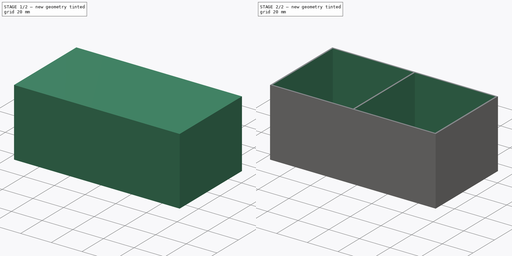
[diagram: build sequence overview — one tinted view per stage of 2, left to right]
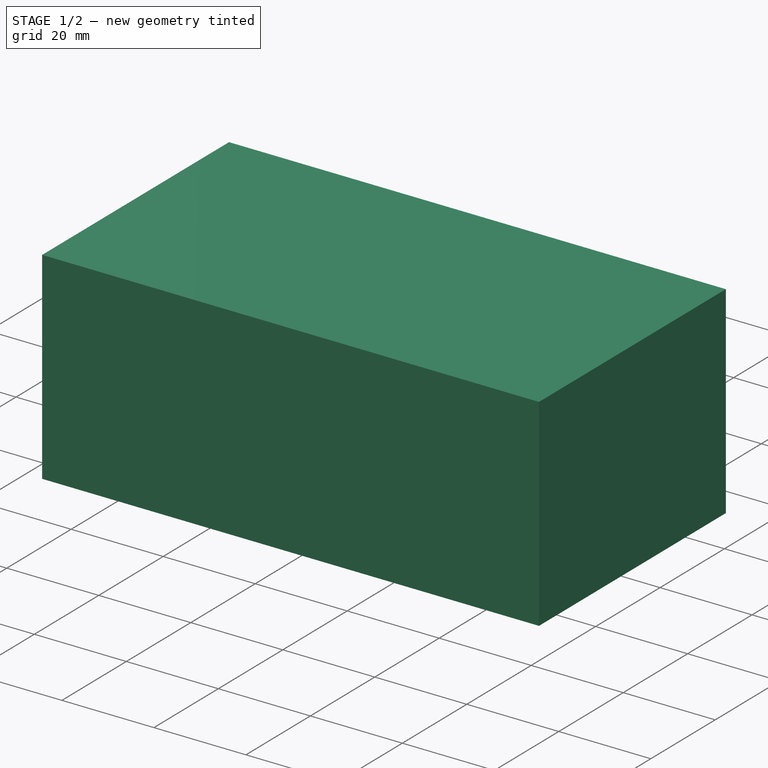
[diagram: stage 1 of 2 — iso view after this stage's code; geometry added in this stage tinted green]
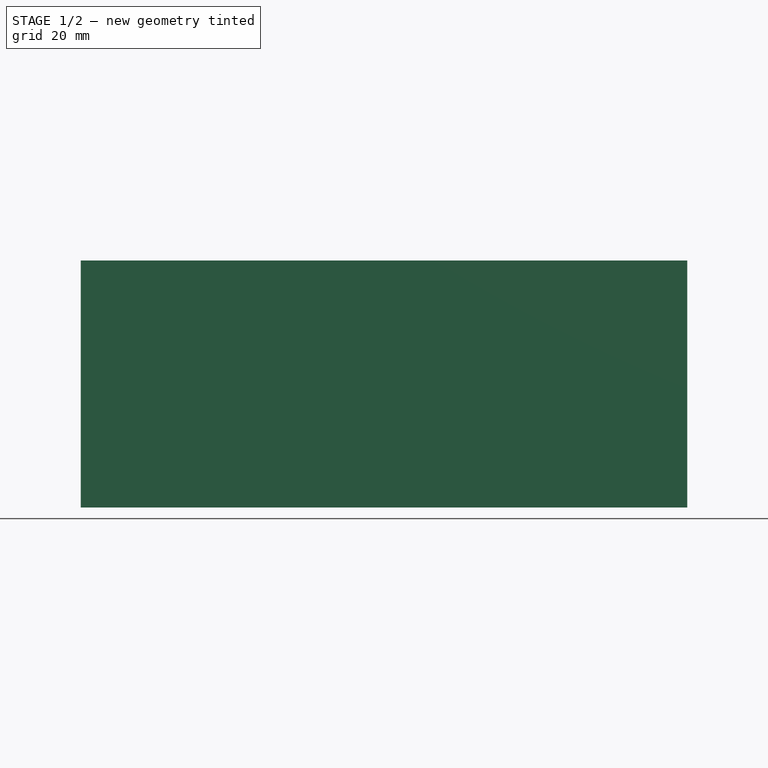
[diagram: stage 1 of 2 — front view after this stage's code; geometry added in this stage tinted green]
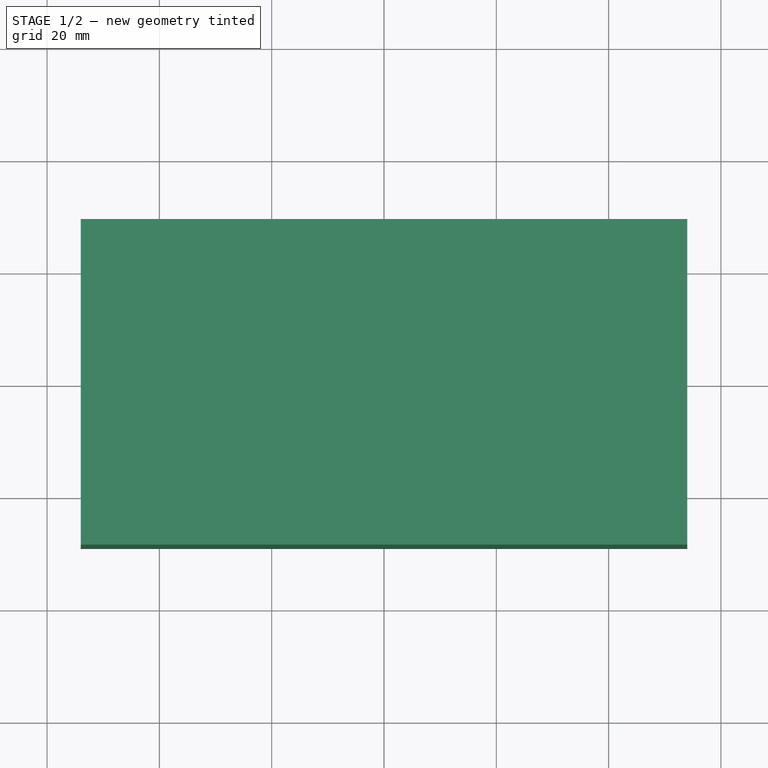
[diagram: stage 1 of 2 — top view after this stage's code; geometry added in this stage tinted green]
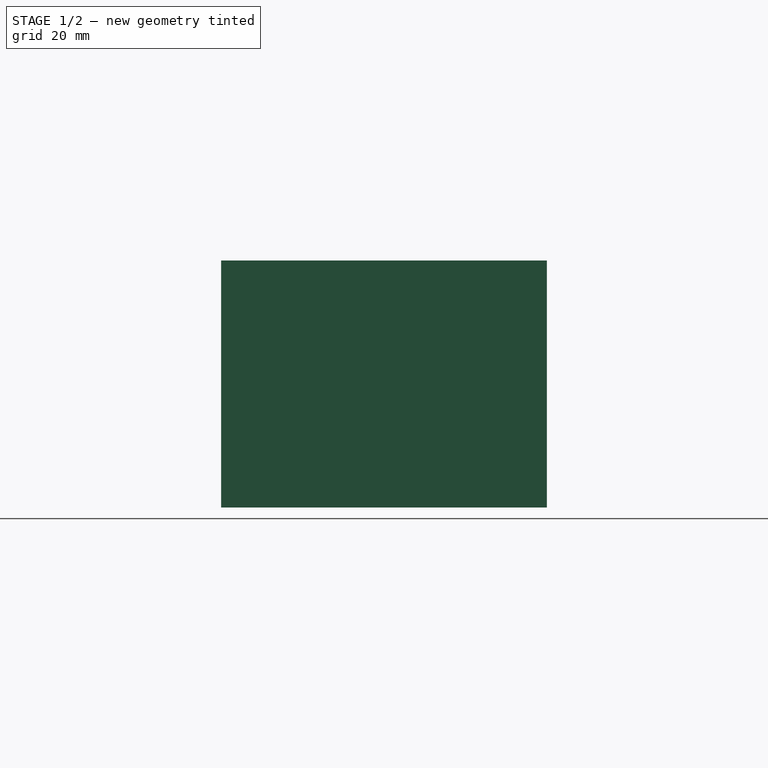
[diagram: stage 1 of 2 — right view after this stage's code; geometry added in this stage tinted green]
FCSTD DOCUMENT  (FreeCAD 1.0R39109 (Git))
Label: box
License: All rights reserved
LicenseURL: http://en.wikipedia.org/wiki/All_rights_reserved
objects: Sketcher::SketchObject×2, PartDesign::Pad×1, PartDesign::Pocket×1, PartDesign::Body×1
note: 11 computed .brp shape members not serialized (recipe doc carries the construction recipe); baked Part::Feature solids carry a one-line shape summary decoded from their .brp

FEATURE [Sketcher::SketchObject] Sketch
  ArcFitTolerance = 1e-06
  AttachmentSupport = -> [XY_Plane]
  FullyConstrained = true
  MakeInternals = false
  MapMode = 5
  sketch-geometry (4):
    g0: LineSegment StartX=-54 StartY=29 StartZ=0 EndX=-54 EndY=-29 EndZ=0
    g1: LineSegment StartX=-54 StartY=-29 StartZ=0 EndX=54 EndY=-29 EndZ=0
    g2: LineSegment StartX=54 StartY=-29 StartZ=0 EndX=54 EndY=29 EndZ=0
    g3: LineSegment StartX=54 StartY=29 StartZ=0 EndX=-54 EndY=29 EndZ=0
  constraints (11):
    c: Coincident(g0,g1)
    c: Coincident(g1,g2)
    c: Coincident(g2,g3)
    c: Coincident(g3,g0)
    c: Vertical(g0)
    c: Vertical(g2)
    c: Horizontal(g1)
    c: Horizontal(g3)
    c: Symmetric(g1,g0,g-1)
    c: DistanceY(g0,g0) = 58
    c: DistanceX(g3,g3) = 108
FEATURE [PartDesign::Pad] Pad
  Direction = (0,0,1)
  Length = 44
  Length2 = 10
  Profile = -> Sketch
  ReferenceAxis = -> Sketch [N_Axis]
  Suppressed = false
  Type = 0
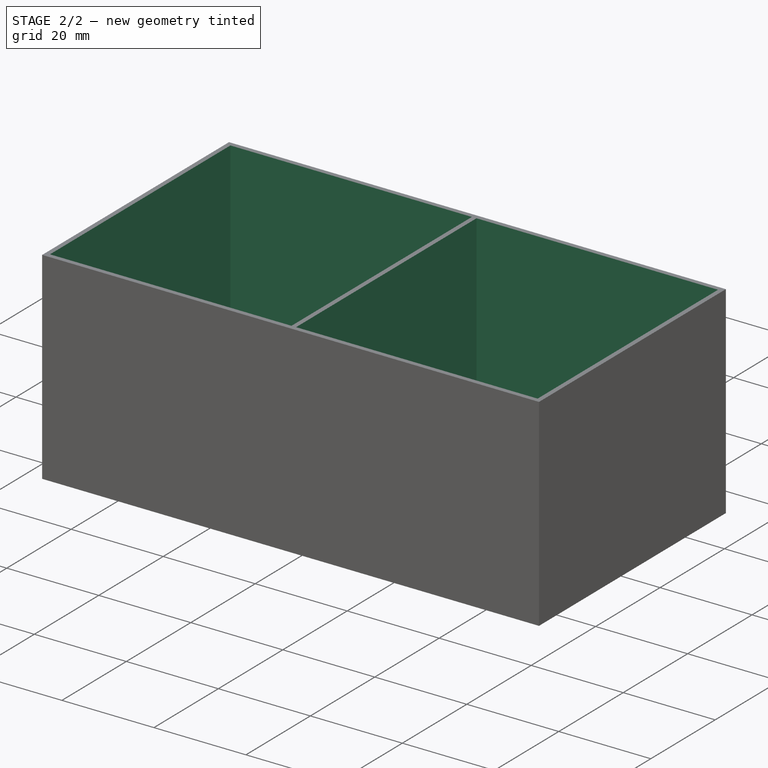
[diagram: stage 2 of 2 — iso view after this stage's code; geometry added in this stage tinted green]
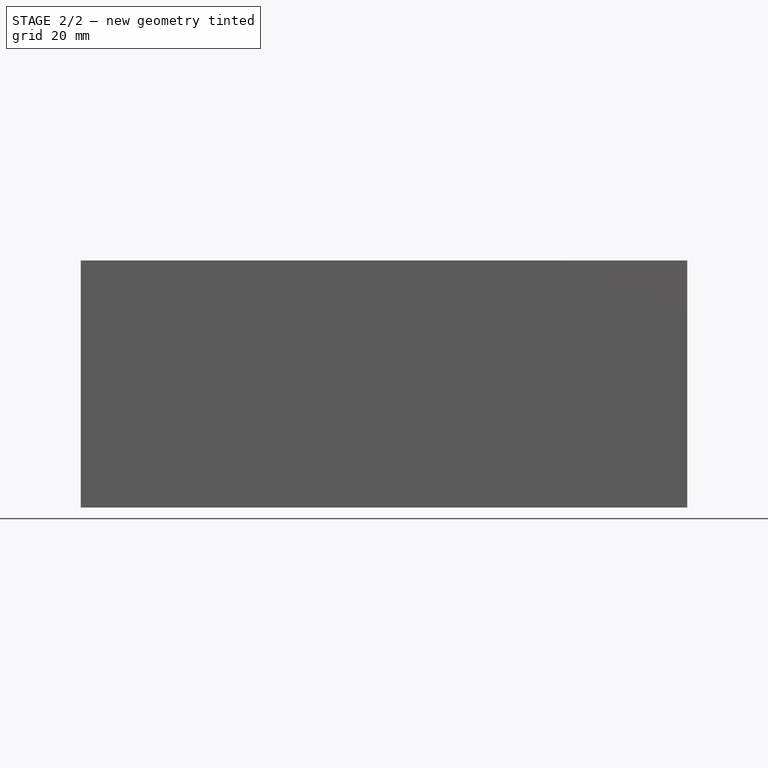
[diagram: stage 2 of 2 — front view after this stage's code; geometry added in this stage tinted green]
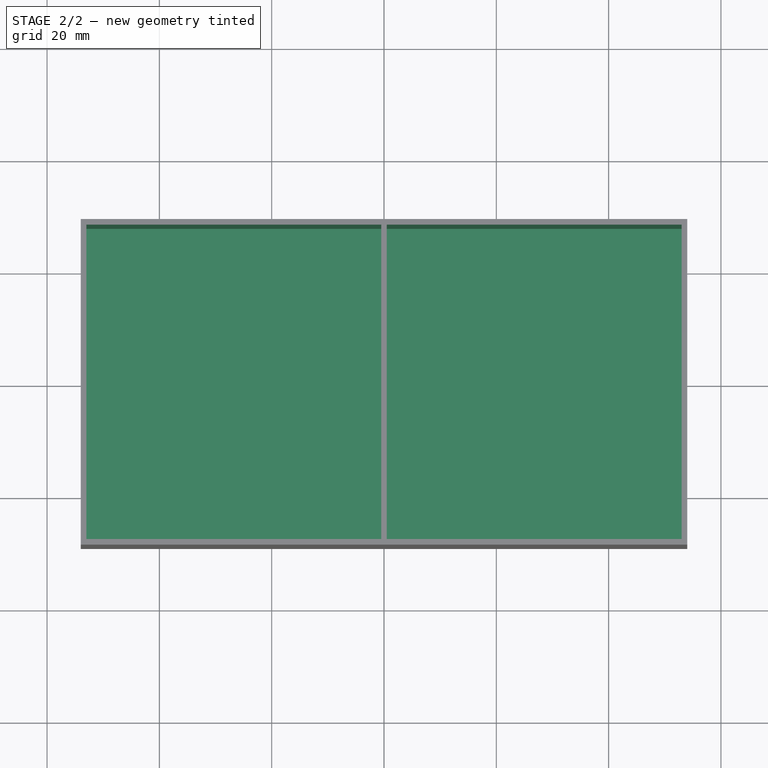
[diagram: stage 2 of 2 — top view after this stage's code; geometry added in this stage tinted green]
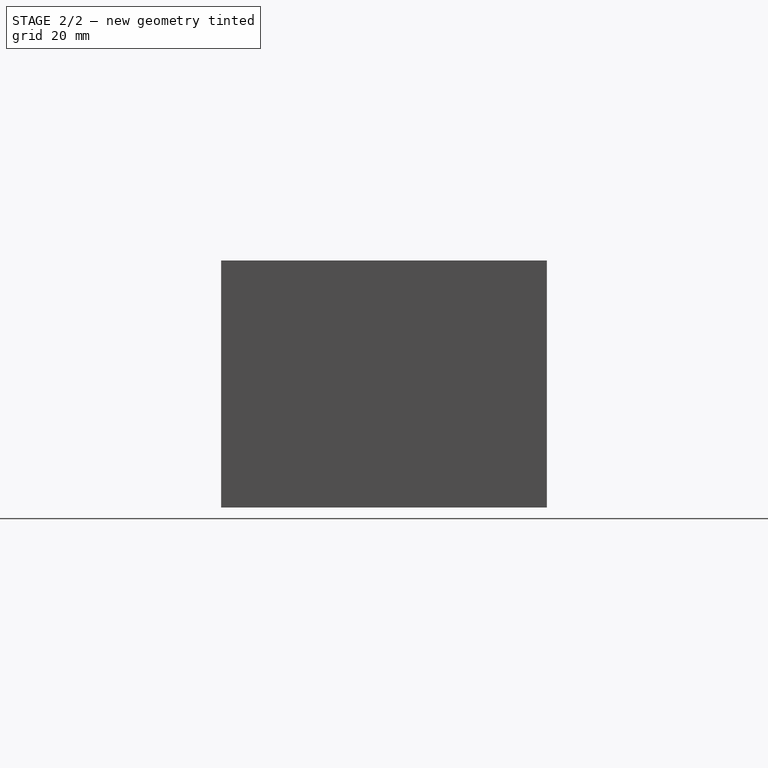
[diagram: stage 2 of 2 — right view after this stage's code; geometry added in this stage tinted green]
FEATURE [Sketcher::SketchObject] Sketch001
  ArcFitTolerance = 1e-06
  AttachmentSupport = -> [Pad]
  ExternalGeometry = -> [Pad]
  FullyConstrained = true
  MakeInternals = false
  MapMode = 5
  Placement = pos=(0,0,44) rot=(0,0,1;0rad)
  sketch-geometry (8):
    g0: LineSegment StartX=-53 StartY=28 StartZ=0 EndX=-53 EndY=-28 EndZ=0
    g1: LineSegment StartX=-53 StartY=-28 StartZ=0 EndX=-0.5 EndY=-28 EndZ=0
    g2: LineSegment StartX=-0.5 StartY=-28 StartZ=0 EndX=-0.5 EndY=28 EndZ=0
    g3: LineSegment StartX=-0.5 StartY=28 StartZ=0 EndX=-53 EndY=28 EndZ=0
    g4: LineSegment StartX=0.5 StartY=28 StartZ=0 EndX=0.5 EndY=-28 EndZ=0
    g5: LineSegment StartX=0.5 StartY=-28 StartZ=0 EndX=53 EndY=-28 EndZ=0
    g6: LineSegment StartX=53 StartY=-28 StartZ=0 EndX=53 EndY=28 EndZ=0
    g7: LineSegment StartX=53 StartY=28 StartZ=0 EndX=0.5 EndY=28 EndZ=0
  constraints (24):
    c: Coincident(g0,g1)
    c: Coincident(g1,g2)
    c: Coincident(g2,g3)
    c: Coincident(g3,g0)
    c: Vertical(g0)
    c: Vertical(g2)
    c: Horizontal(g1)
    c: Horizontal(g3)
    c: DistanceX(g3,g3) = 52.5
    c: DistanceY(g0,g0) = 56
    c: Coincident(g4,g5)
    c: Coincident(g5,g6)
    c: Coincident(g6,g7)
    c: Coincident(g7,g4)
    c: Vertical(g4)
    c: Vertical(g6)
    c: Horizontal(g5)
    c: Horizontal(g7)
    c: DistanceX(g-3,g0) = 1
    c: DistanceY(g0,g-3) = 1
    c: DistanceX(g6,g-6) = 1
    c: DistanceY(g6,g-6) = 1
    c: DistanceY(g6,g6) = 56
    c: DistanceX(g7,g7) = 52.5
FEATURE [PartDesign::Pocket] Pocket
  BaseFeature = -> Pad
  Direction = (0,0,-1)
  Length = 43
  Length2 = 5
  Profile = -> Sketch001
  ReferenceAxis = -> Sketch001 [N_Axis]
  Suppressed = false
  Type = 0
FEATURE [PartDesign::Body] Body
  AllowCompound = false
  Group = -> [Sketch,Pad,Sketch001,Pocket]
  Origin = -> Origin
  Tip = -> Pocket
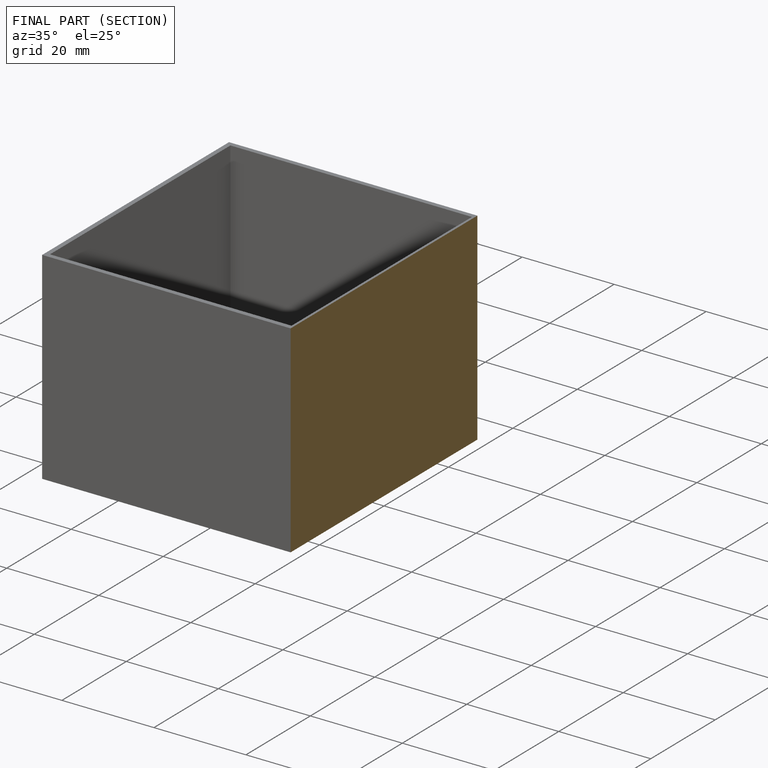
[diagram: finished part — half-section view (interior)]
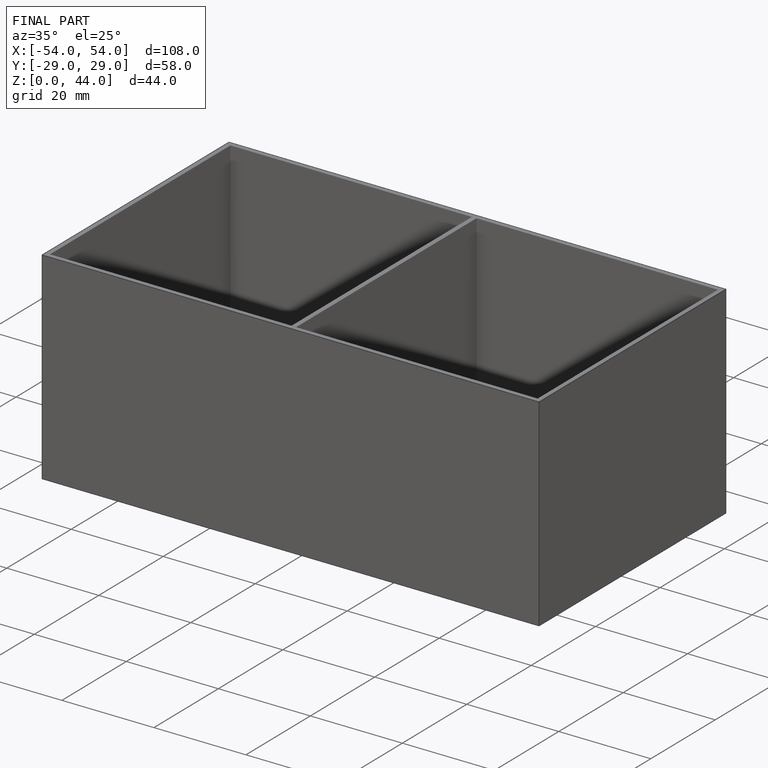
[diagram: finished part — iso view with bounding-box wireframe]
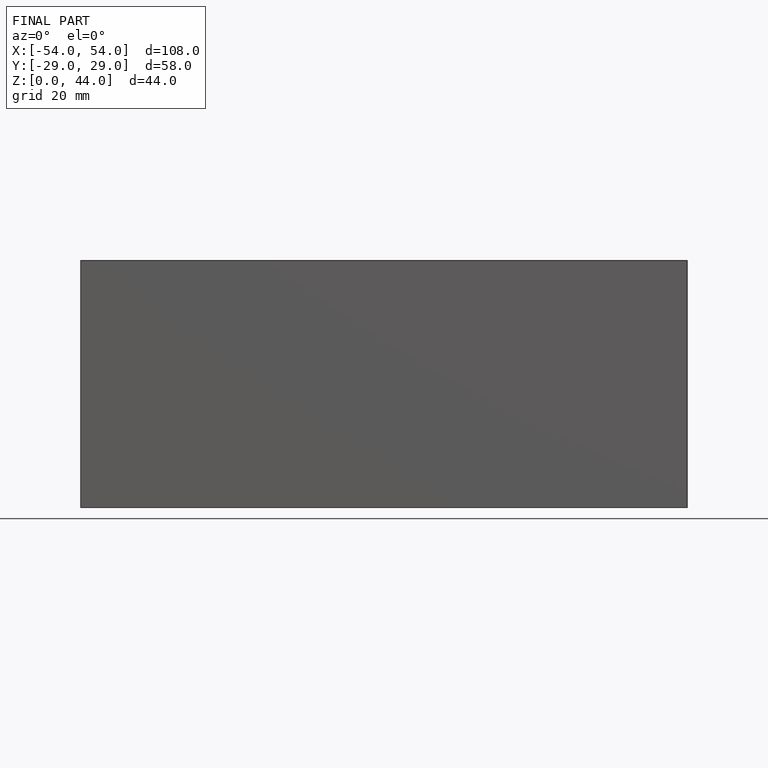
[diagram: finished part — front view with bounding-box wireframe]
